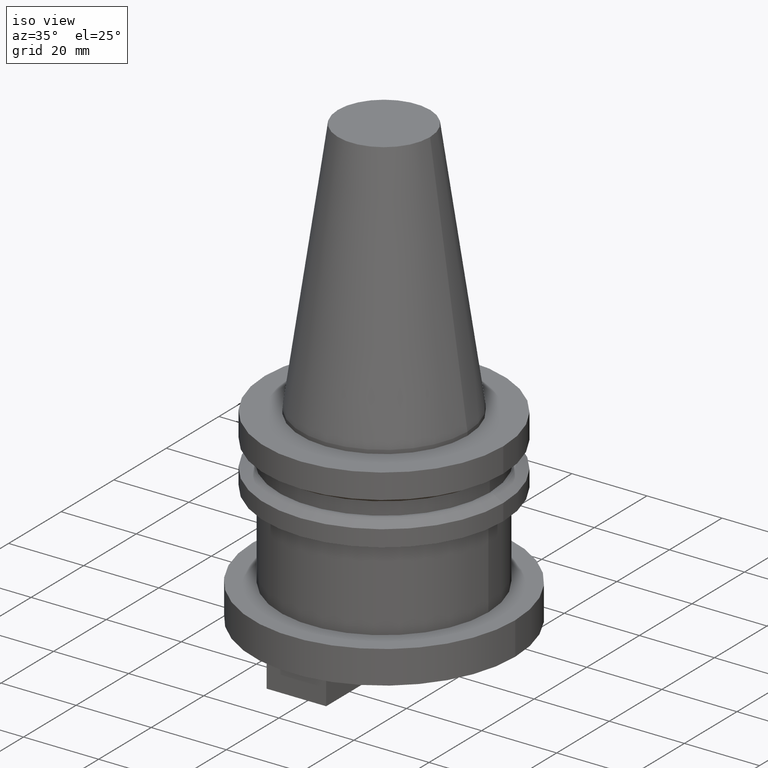
[diagram: clean part render]
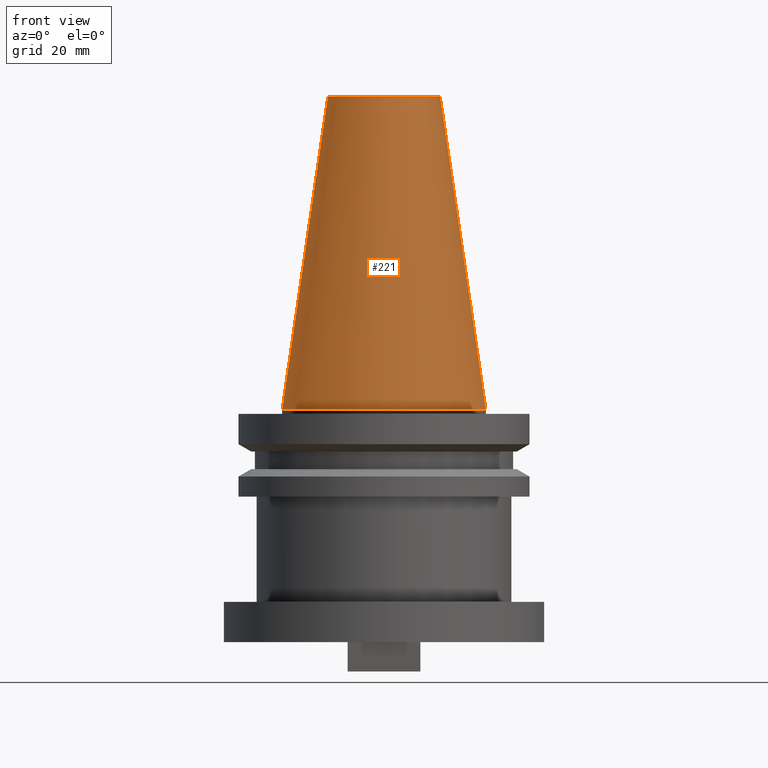
[diagram: tour spotlight — one face highlighted and labeled with its STEP entity id]
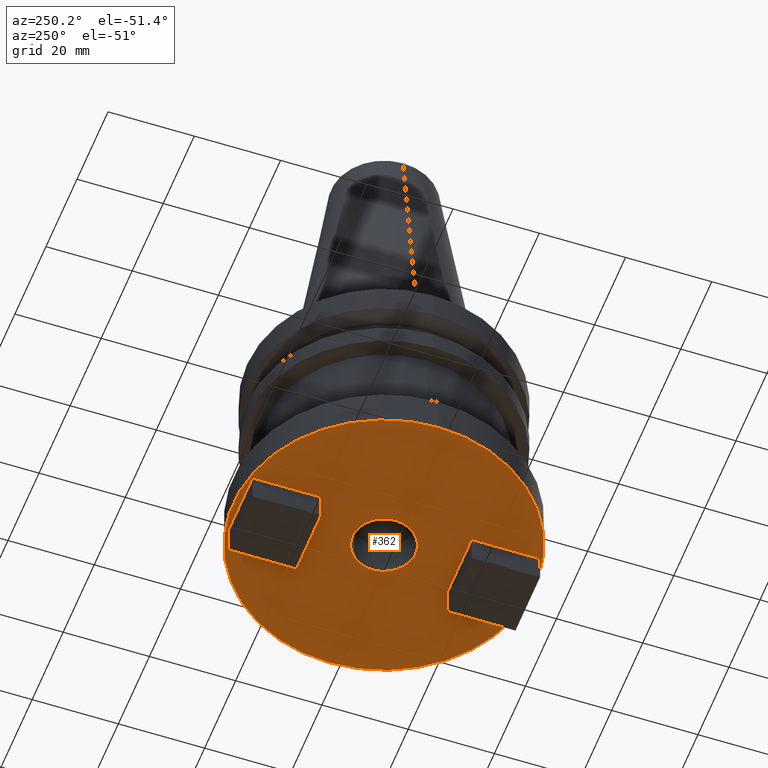
[diagram: tour spotlight — one face highlighted and labeled with its STEP entity id]
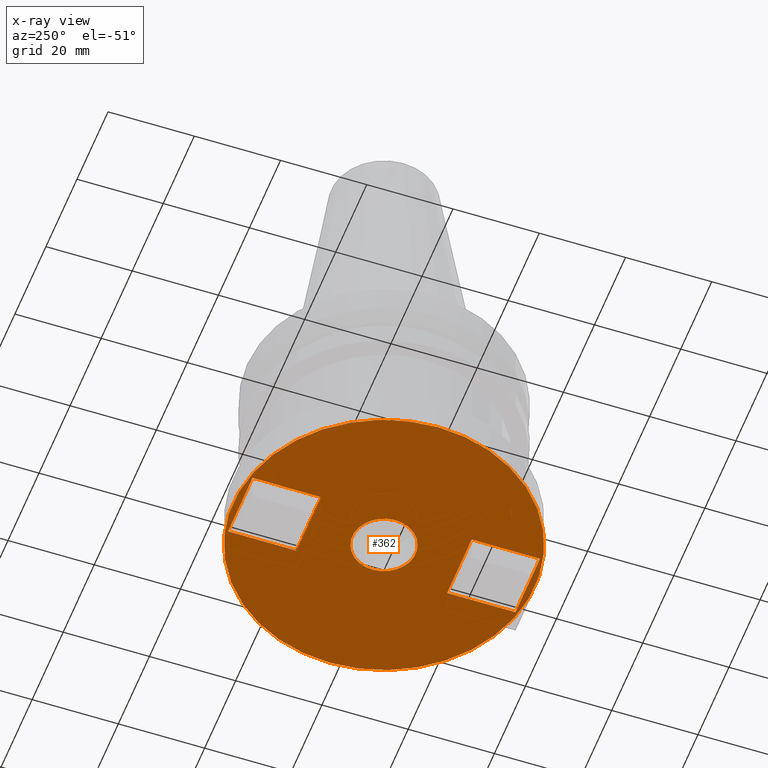
[diagram: x-ray of the same camera — body ghosted, this tour face saturated]
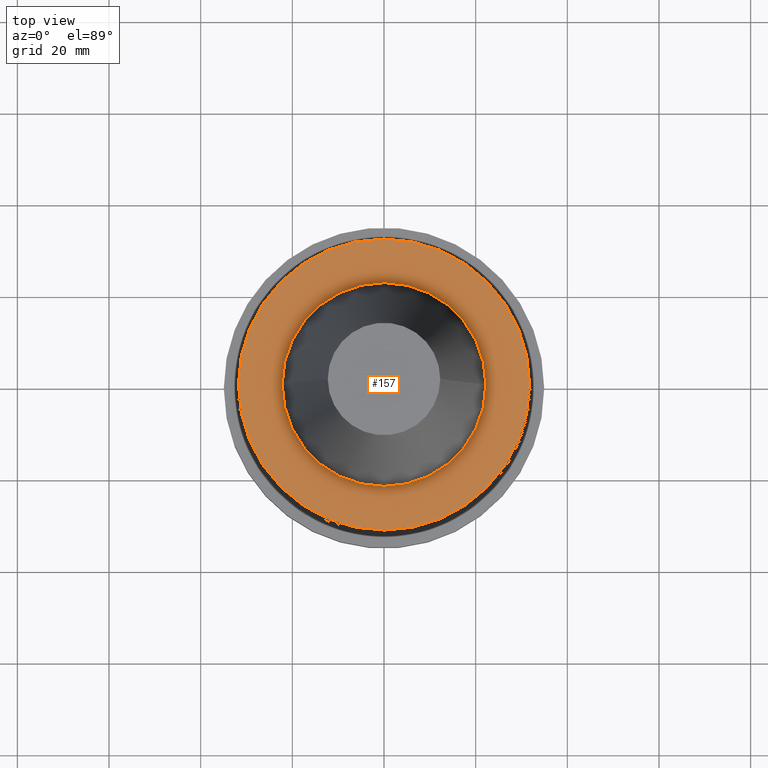
[diagram: tour spotlight — one face highlighted and labeled with its STEP entity id]
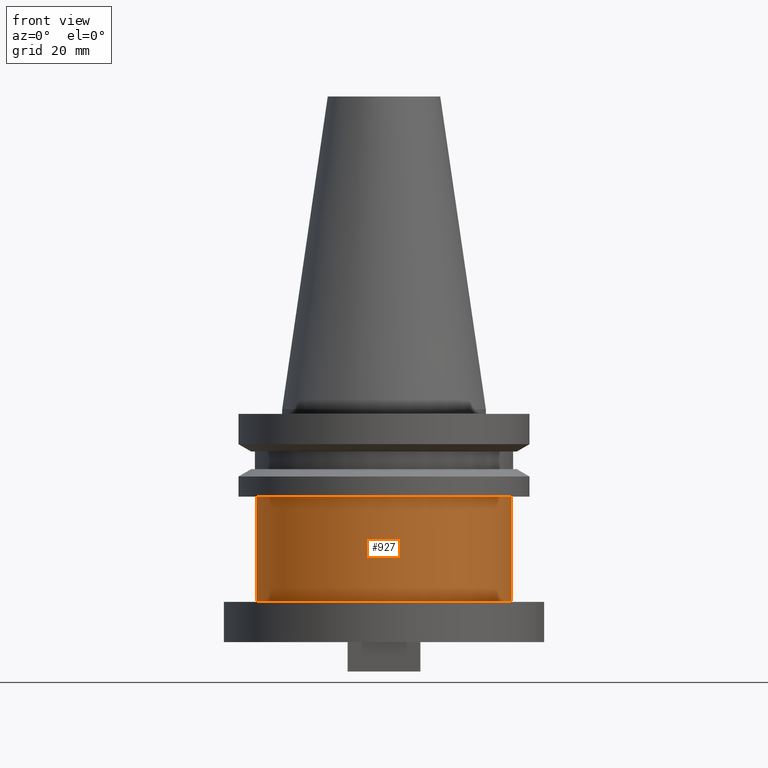
[diagram: tour spotlight — one face highlighted and labeled with its STEP entity id]
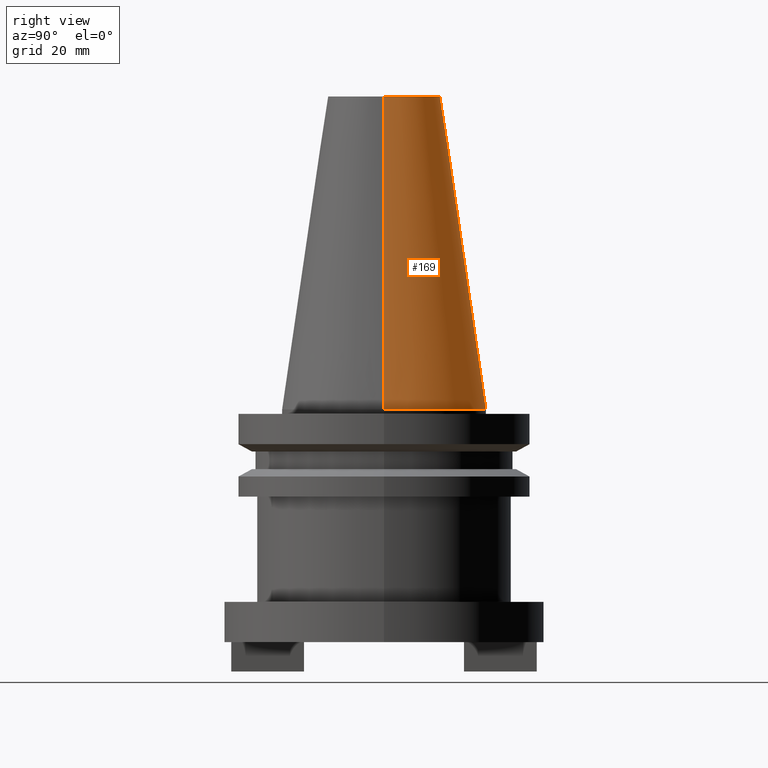
[diagram: tour spotlight — one face highlighted and labeled with its STEP entity id]
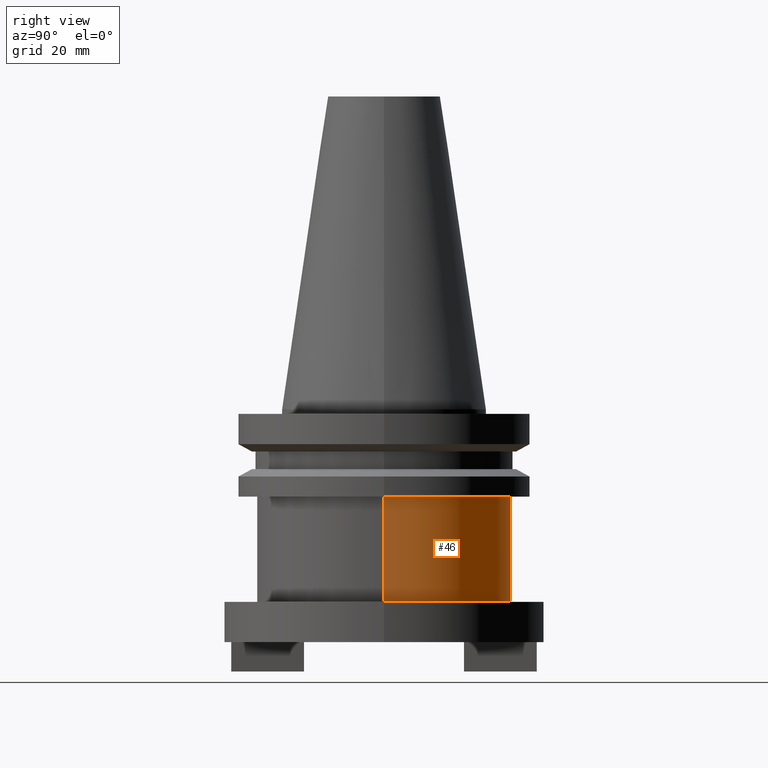
[diagram: tour spotlight — one face highlighted and labeled with its STEP entity id]
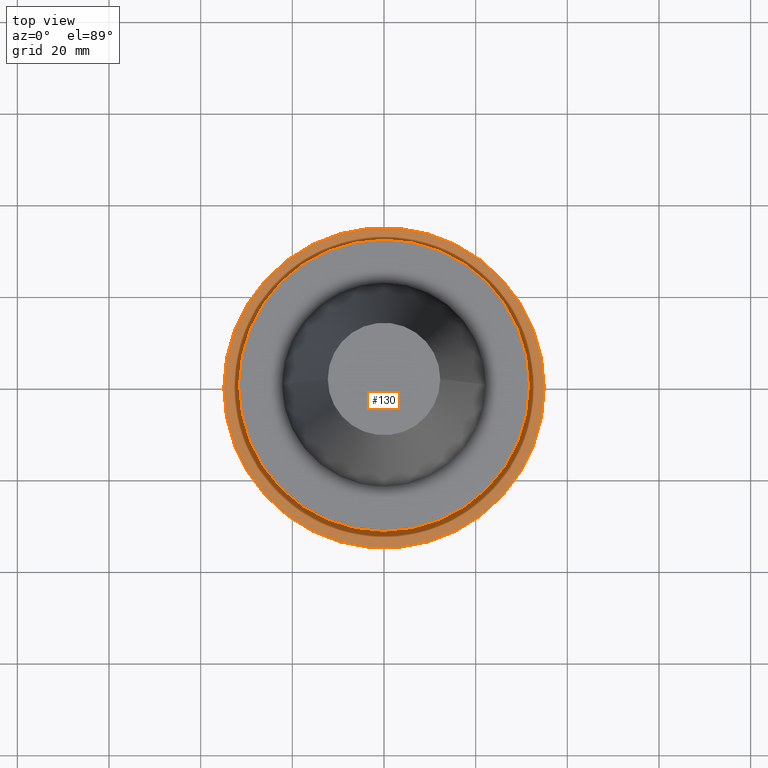
[diagram: tour spotlight — one face highlighted and labeled with its STEP entity id]
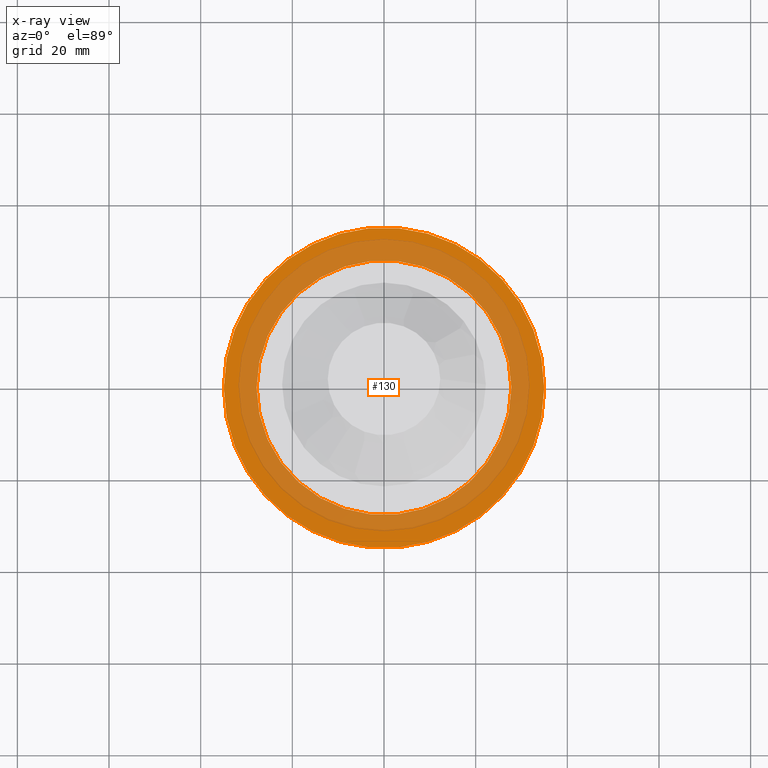
[diagram: x-ray of the same camera — body ghosted, this tour face saturated]
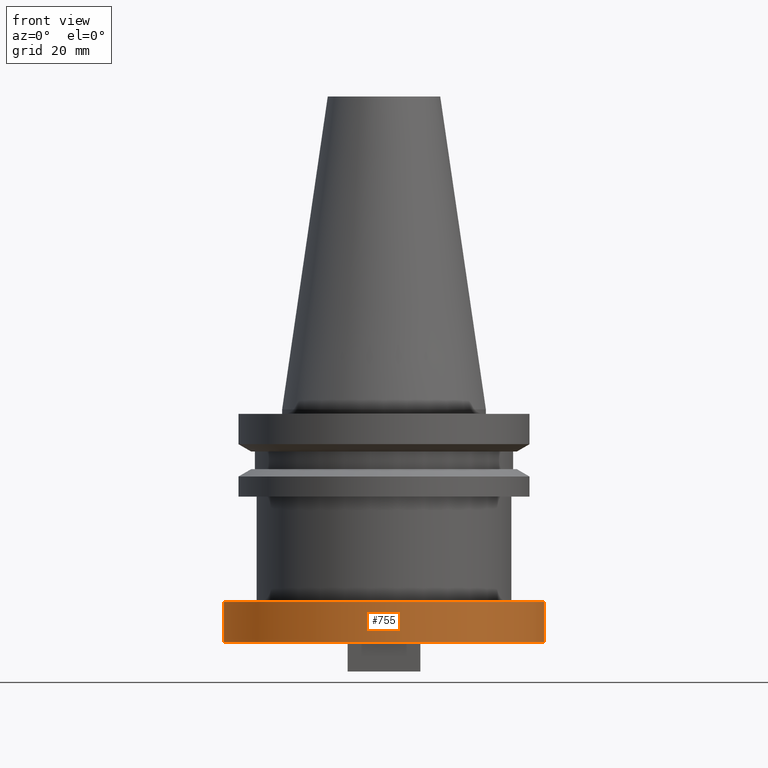
[diagram: tour spotlight — one face highlighted and labeled with its STEP entity id]
A machine part: a face-by-face anatomy tour. The part has 38 B-rep faces; the first image is the clean iso view, then the 8 largest visible faces are spotlighted one at a time (largest first), each with its STEP entity span.

Face 1 — front view, entity #221. In plain terms, the highlighted conical surface has half-angle 8.297 deg.
Definition (entity closure, byte-faithful):
#17 = CIRCLE ( 'NONE', #28, 12.27178102086201150 ) ;
#28 = AXIS2_PLACEMENT_3D ( 'NONE', #229, #79, #892 ) ;
#65 = CARTESIAN_POINT ( 'NONE',  ( 22.22500000000000142, 2.721777511104992849E-15, 0.000000000000000000 ) ) ;
#66 = DIRECTION ( 'NONE',  ( -0.000000000000000000, -0.000000000000000000, 1.000000000000000000 ) ) ;
#79 = DIRECTION ( 'NONE',  ( -0.000000000000000000, -0.000000000000000000, 1.000000000000000000 ) ) ;
#134 = EDGE_CURVE ( 'NONE', #162, #773, #932, .T. ) ;
#162 = VERTEX_POINT ( 'NONE', #613 ) ;
#172 = AXIS2_PLACEMENT_3D ( 'NONE', #564, #66, #975 ) ;
#183 = CARTESIAN_POINT ( 'NONE',  ( -22.22500000000000142, 0.000000000000000000, 0.000000000000000000 ) ) ;
#194 = CARTESIAN_POINT ( 'NONE',  ( 22.22500000000000142, 2.721777511104992849E-15, 0.000000000000000000 ) ) ;
#197 = CARTESIAN_POINT ( 'NONE',  ( 0.000000000000000000, 0.000000000000000000, 0.000000000000000000 ) ) ;
#221 = ADVANCED_FACE ( 'NONE', ( #371 ), #998, .T. ) ;
#229 = CARTESIAN_POINT ( 'NONE',  ( 0.000000000000000000, 0.000000000000000000, 68.25000000000000000 ) ) ;
#233 = ORIENTED_EDGE ( 'NONE', *, *, #408, .F. ) ;
#280 = EDGE_CURVE ( 'NONE', #773, #991, #631, .T. ) ;
#371 = FACE_OUTER_BOUND ( 'NONE', #962, .T. ) ;
#374 = AXIS2_PLACEMENT_3D ( 'NONE', #197, #938, #1048 ) ;
#395 = VECTOR ( 'NONE', #508, 999.9999999999998863 ) ;
#408 = EDGE_CURVE ( 'NONE', #162, #878, #17, .T. ) ;
#430 = VECTOR ( 'NONE', #1031, 999.9999999999998863 ) ;
#456 = LINE ( 'NONE', #194, #430 ) ;
#508 = DIRECTION ( 'NONE',  ( -0.1443082272672999711, 0.000000000000000000, -0.9895327864921755756 ) ) ;
#564 = CARTESIAN_POINT ( 'NONE',  ( 0.000000000000000000, 0.000000000000000000, 0.000000000000000000 ) ) ;
#580 = ORIENTED_EDGE ( 'NONE', *, *, #134, .T. ) ;
#604 = EDGE_CURVE ( 'NONE', #878, #991, #456, .T. ) ;
#613 = CARTESIAN_POINT ( 'NONE',  ( -12.27178102086201150, 0.000000000000000000, 68.25000000000000000 ) ) ;
#631 = CIRCLE ( 'NONE', #172, 22.22500000000000142 ) ;
#644 = CARTESIAN_POINT ( 'NONE',  ( -22.22500000000000142, 0.000000000000000000, 0.000000000000000000 ) ) ;
#645 = ORIENTED_EDGE ( 'NONE', *, *, #280, .T. ) ;
#695 = CARTESIAN_POINT ( 'NONE',  ( 12.27178102086201150, 2.112318622904291439E-15, 68.25000000000000000 ) ) ;
#773 = VERTEX_POINT ( 'NONE', #644 ) ;
#878 = VERTEX_POINT ( 'NONE', #695 ) ;
#892 = DIRECTION ( 'NONE',  ( 1.000000000000000000, 0.000000000000000000, 0.000000000000000000 ) ) ;
#932 = LINE ( 'NONE', #183, #395 ) ;
#938 = DIRECTION ( 'NONE',  ( 0.000000000000000000, 0.000000000000000000, -1.000000000000000000 ) ) ;
#958 = ORIENTED_EDGE ( 'NONE', *, *, #604, .F. ) ;
#962 = EDGE_LOOP ( 'NONE', ( #958, #233, #580, #645 ) ) ;
#975 = DIRECTION ( 'NONE',  ( 1.000000000000000000, 0.000000000000000000, 0.000000000000000000 ) ) ;
#991 = VERTEX_POINT ( 'NONE', #65 ) ;
#998 = CONICAL_SURFACE ( 'NONE', #374, 22.22500000000000142, 0.1448138465474119174 ) ;
#1031 = DIRECTION ( 'NONE',  ( 0.1443082272672999711, 1.767266086135276757E-17, -0.9895327864921755756 ) ) ;
#1048 = DIRECTION ( 'NONE',  ( -1.000000000000000000, 0.000000000000000000, 0.000000000000000000 ) ) ;

Face 2 — auxiliary view, entity #362. An x-ray twin of the same camera follows (body ghosted, this face saturated) — the face is partly hidden behind the body. In plain terms, the highlighted planar face has unit normal (0, -0, 1).
Definition (entity closure, byte-faithful):
#1 = VECTOR ( 'NONE', #109, 1000.000000000000000 ) ;
#3 = CARTESIAN_POINT ( 'NONE',  ( 7.934999999999999609, 17.46499999999999631, -50.79999999999999716 ) ) ;
#15 = EDGE_LOOP ( 'NONE', ( #367, #943, #657, #641 ) ) ;
#18 = AXIS2_PLACEMENT_3D ( 'NONE', #1008, #401, #726 ) ;
#23 = VERTEX_POINT ( 'NONE', #232 ) ;
#43 = CARTESIAN_POINT ( 'NONE',  ( -7.934999999999999609, -17.46499999999999986, -50.79999999999999716 ) ) ;
#47 = CARTESIAN_POINT ( 'NONE',  ( 34.95000000000000284, 0.000000000000000000, -50.79999999999999716 ) ) ;
#57 = EDGE_LOOP ( 'NONE', ( #373, #114 ) ) ;
#64 = ORIENTED_EDGE ( 'NONE', *, *, #492, .F. ) ;
#73 = DIRECTION ( 'NONE',  ( -1.000000000000000000, 0.000000000000000000, 0.000000000000000000 ) ) ;
#84 = DIRECTION ( 'NONE',  ( 1.000000000000000000, -0.000000000000000000, -0.000000000000000000 ) ) ;
#109 = DIRECTION ( 'NONE',  ( -1.000000000000000000, 0.000000000000000000, 0.000000000000000000 ) ) ;
#114 = ORIENTED_EDGE ( 'NONE', *, *, #596, .F. ) ;
#115 = VECTOR ( 'NONE', #859, 1000.000000000000000 ) ;
#125 = CARTESIAN_POINT ( 'NONE',  ( 7.935000000000001386, -17.46499999999999986, -50.79999999999999716 ) ) ;
#140 = CARTESIAN_POINT ( 'NONE',  ( -7.934999999999999609, 33.33499999999999375, -50.79999999999999716 ) ) ;
#144 = VERTEX_POINT ( 'NONE', #849 ) ;
#152 = CARTESIAN_POINT ( 'NONE',  ( 7.934999999999999609, 33.33499999999999375, -50.79999999999999716 ) ) ;
#159 = DIRECTION ( 'NONE',  ( 0.000000000000000000, -0.000000000000000000, 1.000000000000000000 ) ) ;
#161 = VERTEX_POINT ( 'NONE', #47 ) ;
#166 = EDGE_CURVE ( 'NONE', #552, #1067, #351, .T. ) ;
#168 = CARTESIAN_POINT ( 'NONE',  ( -7.934999999999999609, 33.33499999999999375, -50.79999999999999716 ) ) ;
#173 = CIRCLE ( 'NONE', #202, 34.95000000000000284 ) ;
#189 = CARTESIAN_POINT ( 'NONE',  ( 0.000000000000000000, 0.000000000000000000, -50.79999999999999716 ) ) ;
#202 = AXIS2_PLACEMENT_3D ( 'NONE', #189, #451, #283 ) ;
#207 = ORIENTED_EDGE ( 'NONE', *, *, #166, .F. ) ;
#213 = VERTEX_POINT ( 'NONE', #529 ) ;
#232 = CARTESIAN_POINT ( 'NONE',  ( -7.934999999999999609, -17.46499999999999986, -50.79999999999999716 ) ) ;
#234 = LINE ( 'NONE', #3, #961 ) ;
#235 = CARTESIAN_POINT ( 'NONE',  ( 0.000000000000000000, 34.95000000000000284, -50.79999999999999716 ) ) ;
#251 = EDGE_CURVE ( 'NONE', #1067, #482, #300, .T. ) ;
#257 = VECTOR ( 'NONE', #591, 1000.000000000000000 ) ;
#275 = LINE ( 'NONE', #43, #257 ) ;
#283 = DIRECTION ( 'NONE',  ( 1.000000000000000000, 0.000000000000000000, 0.000000000000000000 ) ) ;
#284 = ORIENTED_EDGE ( 'NONE', *, *, #1068, .F. ) ;
#288 = ORIENTED_EDGE ( 'NONE', *, *, #1059, .T. ) ;
#300 = LINE ( 'NONE', #514, #1 ) ;
#343 = VECTOR ( 'NONE', #84, 1000.000000000000000 ) ;
#348 = VERTEX_POINT ( 'NONE', #993 ) ;
#351 = LINE ( 'NONE', #378, #115 ) ;
#353 = VERTEX_POINT ( 'NONE', #1088 ) ;
#362 = ADVANCED_FACE ( 'NONE', ( #1078, #638, #634, #478 ), #910, .F. ) ;
#367 = ORIENTED_EDGE ( 'NONE', *, *, #960, .F. ) ;
#373 = ORIENTED_EDGE ( 'NONE', *, *, #1049, .F. ) ;
#378 = CARTESIAN_POINT ( 'NONE',  ( 7.935000000000001386, -17.46499999999999986, -50.79999999999999716 ) ) ;
#383 = DIRECTION ( 'NONE',  ( -0.000000000000000000, -0.000000000000000000, 1.000000000000000000 ) ) ;
#401 = DIRECTION ( 'NONE',  ( -0.000000000000000000, -0.000000000000000000, 1.000000000000000000 ) ) ;
#444 = AXIS2_PLACEMENT_3D ( 'NONE', #981, #383, #880 ) ;
#451 = DIRECTION ( 'NONE',  ( -0.000000000000000000, -0.000000000000000000, 1.000000000000000000 ) ) ;
#454 = CARTESIAN_POINT ( 'NONE',  ( 7.934999999999999609, 33.33499999999999375, -50.79999999999999716 ) ) ;
#473 = DIRECTION ( 'NONE',  ( -0.000000000000000000, 1.000000000000000000, -0.000000000000000000 ) ) ;
#478 = FACE_BOUND ( 'NONE', #967, .T. ) ;
#482 = VERTEX_POINT ( 'NONE', #915 ) ;
#483 = CIRCLE ( 'NONE', #18, 34.95000000000000284 ) ;
#492 = EDGE_CURVE ( 'NONE', #482, #23, #275, .T. ) ;
#514 = CARTESIAN_POINT ( 'NONE',  ( 7.935000000000001386, -33.33499999999999375, -50.79999999999999716 ) ) ;
#520 = EDGE_LOOP ( 'NONE', ( #894, #288 ) ) ;
#529 = CARTESIAN_POINT ( 'NONE',  ( 7.934999999999999609, 17.46499999999999631, -50.79999999999999716 ) ) ;
#552 = VERTEX_POINT ( 'NONE', #125 ) ;
#560 = DIRECTION ( 'NONE',  ( 1.000000000000000000, 0.000000000000000000, 0.000000000000000000 ) ) ;
#573 = DIRECTION ( 'NONE',  ( -0.000000000000000000, -0.000000000000000000, 1.000000000000000000 ) ) ;
#576 = CARTESIAN_POINT ( 'NONE',  ( 7.935000000000001386, -33.33499999999999375, -50.79999999999999716 ) ) ;
#591 = DIRECTION ( 'NONE',  ( -0.000000000000000000, 1.000000000000000000, -0.000000000000000000 ) ) ;
#596 = EDGE_CURVE ( 'NONE', #348, #161, #173, .T. ) ;
#612 = CIRCLE ( 'NONE', #633, 7.339999999999999858 ) ;
#632 = VECTOR ( 'NONE', #972, 1000.000000000000000 ) ;
#633 = AXIS2_PLACEMENT_3D ( 'NONE', #992, #573, #917 ) ;
#634 = FACE_BOUND ( 'NONE', #520, .T. ) ;
#637 = LINE ( 'NONE', #987, #343 ) ;
#638 = FACE_OUTER_BOUND ( 'NONE', #57, .T. ) ;
#641 = ORIENTED_EDGE ( 'NONE', *, *, #1020, .F. ) ;
#657 = ORIENTED_EDGE ( 'NONE', *, *, #765, .F. ) ;
#677 = CARTESIAN_POINT ( 'NONE',  ( 7.935000000000001386, -17.46499999999999986, -50.79999999999999716 ) ) ;
#721 = VECTOR ( 'NONE', #473, 1000.000000000000000 ) ;
#726 = DIRECTION ( 'NONE',  ( 1.000000000000000000, 0.000000000000000000, 0.000000000000000000 ) ) ;
#756 = AXIS2_PLACEMENT_3D ( 'NONE', #235, #159, #560 ) ;
#765 = EDGE_CURVE ( 'NONE', #867, #213, #904, .T. ) ;
#789 = CARTESIAN_POINT ( 'NONE',  ( -7.934999999999999609, 17.46499999999999631, -50.79999999999999716 ) ) ;
#824 = EDGE_CURVE ( 'NONE', #353, #144, #869, .T. ) ;
#846 = ORIENTED_EDGE ( 'NONE', *, *, #251, .F. ) ;
#849 = CARTESIAN_POINT ( 'NONE',  ( -7.339999999999999858, 8.988907505741571865E-16, -50.79999999999999716 ) ) ;
#851 = VECTOR ( 'NONE', #922, 1000.000000000000000 ) ;
#859 = DIRECTION ( 'NONE',  ( 0.000000000000000000, -1.000000000000000000, 0.000000000000000000 ) ) ;
#861 = VERTEX_POINT ( 'NONE', #140 ) ;
#867 = VERTEX_POINT ( 'NONE', #454 ) ;
#869 = CIRCLE ( 'NONE', #444, 7.339999999999999858 ) ;
#880 = DIRECTION ( 'NONE',  ( 1.000000000000000000, 0.000000000000000000, 0.000000000000000000 ) ) ;
#894 = ORIENTED_EDGE ( 'NONE', *, *, #824, .T. ) ;
#902 = LINE ( 'NONE', #168, #721 ) ;
#904 = LINE ( 'NONE', #152, #632 ) ;
#910 = PLANE ( 'NONE',  #756 ) ;
#915 = CARTESIAN_POINT ( 'NONE',  ( -7.934999999999999609, -33.33499999999999375, -50.79999999999999716 ) ) ;
#917 = DIRECTION ( 'NONE',  ( 1.000000000000000000, 0.000000000000000000, 0.000000000000000000 ) ) ;
#922 = DIRECTION ( 'NONE',  ( 1.000000000000000000, -0.000000000000000000, -0.000000000000000000 ) ) ;
#929 = LINE ( 'NONE', #677, #851 ) ;
#933 = VERTEX_POINT ( 'NONE', #789 ) ;
#943 = ORIENTED_EDGE ( 'NONE', *, *, #1036, .F. ) ;
#960 = EDGE_CURVE ( 'NONE', #933, #861, #902, .T. ) ;
#961 = VECTOR ( 'NONE', #73, 1000.000000000000000 ) ;
#967 = EDGE_LOOP ( 'NONE', ( #64, #846, #207, #284 ) ) ;
#972 = DIRECTION ( 'NONE',  ( 0.000000000000000000, -1.000000000000000000, 0.000000000000000000 ) ) ;
#981 = CARTESIAN_POINT ( 'NONE',  ( 0.000000000000000000, 0.000000000000000000, -50.79999999999999716 ) ) ;
#987 = CARTESIAN_POINT ( 'NONE',  ( 7.934999999999999609, 33.33499999999999375, -50.79999999999999716 ) ) ;
#992 = CARTESIAN_POINT ( 'NONE',  ( 0.000000000000000000, 0.000000000000000000, -50.79999999999999716 ) ) ;
#993 = CARTESIAN_POINT ( 'NONE',  ( -34.95000000000000284, 4.280140563019999423E-15, -50.79999999999999716 ) ) ;
#1008 = CARTESIAN_POINT ( 'NONE',  ( 0.000000000000000000, 0.000000000000000000, -50.79999999999999716 ) ) ;
#1020 = EDGE_CURVE ( 'NONE', #861, #867, #637, .T. ) ;
#1036 = EDGE_CURVE ( 'NONE', #213, #933, #234, .T. ) ;
#1049 = EDGE_CURVE ( 'NONE', #161, #348, #483, .T. ) ;
#1059 = EDGE_CURVE ( 'NONE', #144, #353, #612, .T. ) ;
#1067 = VERTEX_POINT ( 'NONE', #576 ) ;
#1068 = EDGE_CURVE ( 'NONE', #23, #552, #929, .T. ) ;
#1078 = FACE_BOUND ( 'NONE', #15, .T. ) ;
#1088 = CARTESIAN_POINT ( 'NONE',  ( 7.339999999999999858, 0.000000000000000000, -50.79999999999999716 ) ) ;

Face 3 — top view, entity #157. In plain terms, the highlighted planar face has unit normal (0, 0, -1).
Definition (entity closure, byte-faithful):
#10 = DIRECTION ( 'NONE',  ( -0.000000000000000000, -0.000000000000000000, 1.000000000000000000 ) ) ;
#37 = CARTESIAN_POINT ( 'NONE',  ( 0.000000000000000000, 0.000000000000000000, -1.000000000000000888 ) ) ;
#48 = AXIS2_PLACEMENT_3D ( 'NONE', #124, #686, #210 ) ;
#87 = CIRCLE ( 'NONE', #443, 22.22500000000000142 ) ;
#112 = FACE_BOUND ( 'NONE', #303, .T. ) ;
#124 = CARTESIAN_POINT ( 'NONE',  ( 0.000000000000000000, 31.75000000000000000, -0.9999999999999943379 ) ) ;
#157 = ADVANCED_FACE ( 'NONE', ( #112, #690 ), #876, .F. ) ;
#165 = CARTESIAN_POINT ( 'NONE',  ( 0.000000000000000000, 0.000000000000000000, -1.000000000000000888 ) ) ;
#208 = EDGE_CURVE ( 'NONE', #806, #953, #680, .T. ) ;
#210 = DIRECTION ( 'NONE',  ( -1.000000000000000000, 0.000000000000000000, -0.000000000000000000 ) ) ;
#261 = EDGE_CURVE ( 'NONE', #694, #442, #271, .T. ) ;
#271 = CIRCLE ( 'NONE', #885, 22.22500000000000142 ) ;
#274 = DIRECTION ( 'NONE',  ( -0.000000000000000000, -0.000000000000000000, 1.000000000000000000 ) ) ;
#303 = EDGE_LOOP ( 'NONE', ( #391, #471 ) ) ;
#391 = ORIENTED_EDGE ( 'NONE', *, *, #261, .F. ) ;
#442 = VERTEX_POINT ( 'NONE', #467 ) ;
#443 = AXIS2_PLACEMENT_3D ( 'NONE', #165, #493, #829 ) ;
#462 = EDGE_CURVE ( 'NONE', #442, #694, #87, .T. ) ;
#467 = CARTESIAN_POINT ( 'NONE',  ( -22.22500000000000142, 2.721777511104992849E-15, -1.000000000000000888 ) ) ;
#471 = ORIENTED_EDGE ( 'NONE', *, *, #462, .F. ) ;
#493 = DIRECTION ( 'NONE',  ( -0.000000000000000000, -0.000000000000000000, 1.000000000000000000 ) ) ;
#680 = CIRCLE ( 'NONE', #848, 31.75000000000000000 ) ;
#686 = DIRECTION ( 'NONE',  ( 0.000000000000000000, 0.000000000000000000, -1.000000000000000000 ) ) ;
#690 = FACE_OUTER_BOUND ( 'NONE', #995, .T. ) ;
#694 = VERTEX_POINT ( 'NONE', #715 ) ;
#715 = CARTESIAN_POINT ( 'NONE',  ( 22.22500000000000142, 0.000000000000000000, -1.000000000000000888 ) ) ;
#733 = CARTESIAN_POINT ( 'NONE',  ( 31.75000000000000000, 0.000000000000000000, -1.000000000000000888 ) ) ;
#740 = CIRCLE ( 'NONE', #890, 31.75000000000000000 ) ;
#766 = CARTESIAN_POINT ( 'NONE',  ( 0.000000000000000000, 0.000000000000000000, -1.000000000000000888 ) ) ;
#800 = EDGE_CURVE ( 'NONE', #953, #806, #740, .T. ) ;
#806 = VERTEX_POINT ( 'NONE', #733 ) ;
#829 = DIRECTION ( 'NONE',  ( 1.000000000000000000, 0.000000000000000000, 0.000000000000000000 ) ) ;
#848 = AXIS2_PLACEMENT_3D ( 'NONE', #37, #944, #1029 ) ;
#863 = CARTESIAN_POINT ( 'NONE',  ( 0.000000000000000000, 0.000000000000000000, -1.000000000000000888 ) ) ;
#864 = DIRECTION ( 'NONE',  ( 1.000000000000000000, 0.000000000000000000, 0.000000000000000000 ) ) ;
#873 = ORIENTED_EDGE ( 'NONE', *, *, #208, .T. ) ;
#876 = PLANE ( 'NONE',  #48 ) ;
#885 = AXIS2_PLACEMENT_3D ( 'NONE', #766, #274, #864 ) ;
#890 = AXIS2_PLACEMENT_3D ( 'NONE', #863, #10, #1009 ) ;
#944 = DIRECTION ( 'NONE',  ( -0.000000000000000000, -0.000000000000000000, 1.000000000000000000 ) ) ;
#953 = VERTEX_POINT ( 'NONE', #1081 ) ;
#995 = EDGE_LOOP ( 'NONE', ( #873, #1035 ) ) ;
#1009 = DIRECTION ( 'NONE',  ( 1.000000000000000000, 0.000000000000000000, 0.000000000000000000 ) ) ;
#1029 = DIRECTION ( 'NONE',  ( 1.000000000000000000, 0.000000000000000000, 0.000000000000000000 ) ) ;
#1035 = ORIENTED_EDGE ( 'NONE', *, *, #800, .T. ) ;
#1081 = CARTESIAN_POINT ( 'NONE',  ( -31.75000000000000000, 3.888253587292846476E-15, -1.000000000000000888 ) ) ;

Face 4 — front view, entity #927. In plain terms, the highlighted cylindrical surface (partial cylindrical patch) has radius 27.8 mm, axis along (-0, -0, 1).
Definition (entity closure, byte-faithful):
#21 = DIRECTION ( 'NONE',  ( -0.000000000000000000, -0.000000000000000000, 1.000000000000000000 ) ) ;
#24 = DIRECTION ( 'NONE',  ( 0.000000000000000000, 0.000000000000000000, -1.000000000000000000 ) ) ;
#27 = AXIS2_PLACEMENT_3D ( 'NONE', #665, #21, #86 ) ;
#53 = EDGE_CURVE ( 'NONE', #535, #819, #479, .T. ) ;
#55 = CARTESIAN_POINT ( 'NONE',  ( -27.80000000000000071, 3.404518101629642167E-15, -42.00000000000000711 ) ) ;
#86 = DIRECTION ( 'NONE',  ( 1.000000000000000000, 0.000000000000000000, 0.000000000000000000 ) ) ;
#101 = EDGE_CURVE ( 'NONE', #526, #819, #256, .T. ) ;
#179 = CARTESIAN_POINT ( 'NONE',  ( 27.80000000000000071, 0.000000000000000000, -19.04999999999999716 ) ) ;
#230 = EDGE_CURVE ( 'NONE', #333, #535, #292, .T. ) ;
#255 = EDGE_CURVE ( 'NONE', #526, #333, #497, .T. ) ;
#256 = LINE ( 'NONE', #656, #865 ) ;
#273 = AXIS2_PLACEMENT_3D ( 'NONE', #896, #606, #285 ) ;
#285 = DIRECTION ( 'NONE',  ( 1.000000000000000000, 0.000000000000000000, 0.000000000000000000 ) ) ;
#292 = LINE ( 'NONE', #1055, #458 ) ;
#333 = VERTEX_POINT ( 'NONE', #55 ) ;
#346 = ORIENTED_EDGE ( 'NONE', *, *, #230, .F. ) ;
#424 = ORIENTED_EDGE ( 'NONE', *, *, #53, .F. ) ;
#434 = DIRECTION ( 'NONE',  ( -1.000000000000000000, 0.000000000000000000, 0.000000000000000000 ) ) ;
#458 = VECTOR ( 'NONE', #696, 1000.000000000000000 ) ;
#466 = CYLINDRICAL_SURFACE ( 'NONE', #273, 27.80000000000000071 ) ;
#479 = CIRCLE ( 'NONE', #27, 27.80000000000000071 ) ;
#497 = CIRCLE ( 'NONE', #590, 27.80000000000000071 ) ;
#522 = CARTESIAN_POINT ( 'NONE',  ( 0.000000000000000000, 0.000000000000000000, -42.00000000000000711 ) ) ;
#526 = VERTEX_POINT ( 'NONE', #786 ) ;
#534 = CARTESIAN_POINT ( 'NONE',  ( -27.80000000000000071, 3.404518101629642167E-15, -19.04999999999999716 ) ) ;
#535 = VERTEX_POINT ( 'NONE', #534 ) ;
#590 = AXIS2_PLACEMENT_3D ( 'NONE', #522, #24, #434 ) ;
#606 = DIRECTION ( 'NONE',  ( -0.000000000000000000, -0.000000000000000000, 1.000000000000000000 ) ) ;
#618 = EDGE_LOOP ( 'NONE', ( #346, #787, #698, #424 ) ) ;
#656 = CARTESIAN_POINT ( 'NONE',  ( 27.80000000000000071, 0.000000000000000000, 68.25000000000000000 ) ) ;
#665 = CARTESIAN_POINT ( 'NONE',  ( 0.000000000000000000, 0.000000000000000000, -19.04999999999999716 ) ) ;
#674 = DIRECTION ( 'NONE',  ( -0.000000000000000000, -0.000000000000000000, 1.000000000000000000 ) ) ;
#696 = DIRECTION ( 'NONE',  ( -0.000000000000000000, -0.000000000000000000, 1.000000000000000000 ) ) ;
#698 = ORIENTED_EDGE ( 'NONE', *, *, #101, .T. ) ;
#786 = CARTESIAN_POINT ( 'NONE',  ( 27.80000000000000071, 0.000000000000000000, -42.00000000000000711 ) ) ;
#787 = ORIENTED_EDGE ( 'NONE', *, *, #255, .F. ) ;
#819 = VERTEX_POINT ( 'NONE', #179 ) ;
#865 = VECTOR ( 'NONE', #674, 1000.000000000000000 ) ;
#891 = FACE_OUTER_BOUND ( 'NONE', #618, .T. ) ;
#896 = CARTESIAN_POINT ( 'NONE',  ( 0.000000000000000000, 0.000000000000000000, 68.25000000000000000 ) ) ;
#927 = ADVANCED_FACE ( 'NONE', ( #891 ), #466, .T. ) ;
#1055 = CARTESIAN_POINT ( 'NONE',  ( -27.80000000000000071, 3.404518101629642167E-15, 68.25000000000000000 ) ) ;

Face 5 — right view, entity #169. In plain terms, the highlighted conical surface has half-angle 8.297 deg.
Definition (entity closure, byte-faithful):
#52 = AXIS2_PLACEMENT_3D ( 'NONE', #883, #56, #635 ) ;
#56 = DIRECTION ( 'NONE',  ( -0.000000000000000000, -0.000000000000000000, 1.000000000000000000 ) ) ;
#65 = CARTESIAN_POINT ( 'NONE',  ( 22.22500000000000142, 2.721777511104992849E-15, 0.000000000000000000 ) ) ;
#134 = EDGE_CURVE ( 'NONE', #162, #773, #932, .T. ) ;
#137 = CIRCLE ( 'NONE', #52, 22.22500000000000142 ) ;
#162 = VERTEX_POINT ( 'NONE', #613 ) ;
#169 = ADVANCED_FACE ( 'NONE', ( #790 ), #1014, .T. ) ;
#183 = CARTESIAN_POINT ( 'NONE',  ( -22.22500000000000142, 0.000000000000000000, 0.000000000000000000 ) ) ;
#187 = CIRCLE ( 'NONE', #1076, 12.27178102086201150 ) ;
#194 = CARTESIAN_POINT ( 'NONE',  ( 22.22500000000000142, 2.721777511104992849E-15, 0.000000000000000000 ) ) ;
#299 = CARTESIAN_POINT ( 'NONE',  ( 0.000000000000000000, 0.000000000000000000, 68.25000000000000000 ) ) ;
#359 = CARTESIAN_POINT ( 'NONE',  ( 0.000000000000000000, 0.000000000000000000, 0.000000000000000000 ) ) ;
#363 = DIRECTION ( 'NONE',  ( -0.000000000000000000, -0.000000000000000000, 1.000000000000000000 ) ) ;
#368 = ORIENTED_EDGE ( 'NONE', *, *, #134, .F. ) ;
#395 = VECTOR ( 'NONE', #508, 999.9999999999998863 ) ;
#404 = ORIENTED_EDGE ( 'NONE', *, *, #918, .F. ) ;
#430 = VECTOR ( 'NONE', #1031, 999.9999999999998863 ) ;
#440 = ORIENTED_EDGE ( 'NONE', *, *, #752, .T. ) ;
#456 = LINE ( 'NONE', #194, #430 ) ;
#508 = DIRECTION ( 'NONE',  ( -0.1443082272672999711, 0.000000000000000000, -0.9895327864921755756 ) ) ;
#509 = AXIS2_PLACEMENT_3D ( 'NONE', #359, #871, #1043 ) ;
#604 = EDGE_CURVE ( 'NONE', #878, #991, #456, .T. ) ;
#613 = CARTESIAN_POINT ( 'NONE',  ( -12.27178102086201150, 0.000000000000000000, 68.25000000000000000 ) ) ;
#635 = DIRECTION ( 'NONE',  ( 1.000000000000000000, 0.000000000000000000, 0.000000000000000000 ) ) ;
#644 = CARTESIAN_POINT ( 'NONE',  ( -22.22500000000000142, 0.000000000000000000, 0.000000000000000000 ) ) ;
#695 = CARTESIAN_POINT ( 'NONE',  ( 12.27178102086201150, 2.112318622904291439E-15, 68.25000000000000000 ) ) ;
#752 = EDGE_CURVE ( 'NONE', #991, #773, #137, .T. ) ;
#773 = VERTEX_POINT ( 'NONE', #644 ) ;
#777 = DIRECTION ( 'NONE',  ( 1.000000000000000000, 0.000000000000000000, 0.000000000000000000 ) ) ;
#790 = FACE_OUTER_BOUND ( 'NONE', #843, .T. ) ;
#820 = ORIENTED_EDGE ( 'NONE', *, *, #604, .T. ) ;
#843 = EDGE_LOOP ( 'NONE', ( #404, #820, #440, #368 ) ) ;
#871 = DIRECTION ( 'NONE',  ( 0.000000000000000000, 0.000000000000000000, -1.000000000000000000 ) ) ;
#878 = VERTEX_POINT ( 'NONE', #695 ) ;
#883 = CARTESIAN_POINT ( 'NONE',  ( 0.000000000000000000, 0.000000000000000000, 0.000000000000000000 ) ) ;
#918 = EDGE_CURVE ( 'NONE', #878, #162, #187, .T. ) ;
#932 = LINE ( 'NONE', #183, #395 ) ;
#991 = VERTEX_POINT ( 'NONE', #65 ) ;
#1014 = CONICAL_SURFACE ( 'NONE', #509, 22.22500000000000142, 0.1448138465474119174 ) ;
#1031 = DIRECTION ( 'NONE',  ( 0.1443082272672999711, 1.767266086135276757E-17, -0.9895327864921755756 ) ) ;
#1043 = DIRECTION ( 'NONE',  ( -1.000000000000000000, 0.000000000000000000, 0.000000000000000000 ) ) ;
#1076 = AXIS2_PLACEMENT_3D ( 'NONE', #299, #363, #777 ) ;

Face 6 — right view, entity #46. In plain terms, the highlighted cylindrical surface (partial cylindrical patch) has radius 27.8 mm, axis along (-0, -0, 1).
Definition (entity closure, byte-faithful):
#46 = ADVANCED_FACE ( 'NONE', ( #578 ), #842, .T. ) ;
#55 = CARTESIAN_POINT ( 'NONE',  ( -27.80000000000000071, 3.404518101629642167E-15, -42.00000000000000711 ) ) ;
#71 = ORIENTED_EDGE ( 'NONE', *, *, #1063, .F. ) ;
#89 = AXIS2_PLACEMENT_3D ( 'NONE', #325, #418, #254 ) ;
#101 = EDGE_CURVE ( 'NONE', #526, #819, #256, .T. ) ;
#110 = EDGE_CURVE ( 'NONE', #333, #526, #1073, .T. ) ;
#179 = CARTESIAN_POINT ( 'NONE',  ( 27.80000000000000071, 0.000000000000000000, -19.04999999999999716 ) ) ;
#199 = ORIENTED_EDGE ( 'NONE', *, *, #101, .F. ) ;
#230 = EDGE_CURVE ( 'NONE', #333, #535, #292, .T. ) ;
#246 = CIRCLE ( 'NONE', #89, 27.80000000000000071 ) ;
#252 = DIRECTION ( 'NONE',  ( 1.000000000000000000, 0.000000000000000000, 0.000000000000000000 ) ) ;
#254 = DIRECTION ( 'NONE',  ( 1.000000000000000000, 0.000000000000000000, 0.000000000000000000 ) ) ;
#256 = LINE ( 'NONE', #656, #865 ) ;
#292 = LINE ( 'NONE', #1055, #458 ) ;
#325 = CARTESIAN_POINT ( 'NONE',  ( 0.000000000000000000, 0.000000000000000000, -19.04999999999999716 ) ) ;
#332 = CARTESIAN_POINT ( 'NONE',  ( 0.000000000000000000, 0.000000000000000000, -42.00000000000000711 ) ) ;
#333 = VERTEX_POINT ( 'NONE', #55 ) ;
#386 = EDGE_LOOP ( 'NONE', ( #874, #1058, #71, #199 ) ) ;
#418 = DIRECTION ( 'NONE',  ( -0.000000000000000000, -0.000000000000000000, 1.000000000000000000 ) ) ;
#458 = VECTOR ( 'NONE', #696, 1000.000000000000000 ) ;
#494 = CARTESIAN_POINT ( 'NONE',  ( 0.000000000000000000, 0.000000000000000000, 68.25000000000000000 ) ) ;
#498 = DIRECTION ( 'NONE',  ( -1.000000000000000000, 0.000000000000000000, 0.000000000000000000 ) ) ;
#526 = VERTEX_POINT ( 'NONE', #786 ) ;
#534 = CARTESIAN_POINT ( 'NONE',  ( -27.80000000000000071, 3.404518101629642167E-15, -19.04999999999999716 ) ) ;
#535 = VERTEX_POINT ( 'NONE', #534 ) ;
#578 = FACE_OUTER_BOUND ( 'NONE', #386, .T. ) ;
#584 = DIRECTION ( 'NONE',  ( -0.000000000000000000, -0.000000000000000000, 1.000000000000000000 ) ) ;
#656 = CARTESIAN_POINT ( 'NONE',  ( 27.80000000000000071, 0.000000000000000000, 68.25000000000000000 ) ) ;
#674 = DIRECTION ( 'NONE',  ( -0.000000000000000000, -0.000000000000000000, 1.000000000000000000 ) ) ;
#696 = DIRECTION ( 'NONE',  ( -0.000000000000000000, -0.000000000000000000, 1.000000000000000000 ) ) ;
#737 = AXIS2_PLACEMENT_3D ( 'NONE', #332, #750, #498 ) ;
#750 = DIRECTION ( 'NONE',  ( 0.000000000000000000, 0.000000000000000000, -1.000000000000000000 ) ) ;
#771 = AXIS2_PLACEMENT_3D ( 'NONE', #494, #584, #252 ) ;
#786 = CARTESIAN_POINT ( 'NONE',  ( 27.80000000000000071, 0.000000000000000000, -42.00000000000000711 ) ) ;
#819 = VERTEX_POINT ( 'NONE', #179 ) ;
#842 = CYLINDRICAL_SURFACE ( 'NONE', #771, 27.80000000000000071 ) ;
#865 = VECTOR ( 'NONE', #674, 1000.000000000000000 ) ;
#874 = ORIENTED_EDGE ( 'NONE', *, *, #110, .F. ) ;
#1055 = CARTESIAN_POINT ( 'NONE',  ( -27.80000000000000071, 3.404518101629642167E-15, 68.25000000000000000 ) ) ;
#1058 = ORIENTED_EDGE ( 'NONE', *, *, #230, .T. ) ;
#1063 = EDGE_CURVE ( 'NONE', #819, #535, #246, .T. ) ;
#1073 = CIRCLE ( 'NONE', #737, 27.80000000000000071 ) ;

Face 7 — top view, entity #130. An x-ray twin of the same camera follows (body ghosted, this face saturated) — the face is partly hidden behind the body. In plain terms, the highlighted planar face has unit normal (0, 0, -1).
Definition (entity closure, byte-faithful):
#19 = FACE_BOUND ( 'NONE', #77, .T. ) ;
#24 = DIRECTION ( 'NONE',  ( 0.000000000000000000, 0.000000000000000000, -1.000000000000000000 ) ) ;
#29 = CARTESIAN_POINT ( 'NONE',  ( -34.95000000000000284, 4.280140563019999423E-15, -42.00000000000000711 ) ) ;
#30 = AXIS2_PLACEMENT_3D ( 'NONE', #558, #743, #654 ) ;
#32 = ORIENTED_EDGE ( 'NONE', *, *, #653, .T. ) ;
#55 = CARTESIAN_POINT ( 'NONE',  ( -27.80000000000000071, 3.404518101629642167E-15, -42.00000000000000711 ) ) ;
#61 = CARTESIAN_POINT ( 'NONE',  ( 0.000000000000000000, 0.000000000000000000, -42.00000000000000711 ) ) ;
#77 = EDGE_LOOP ( 'NONE', ( #1046, #592 ) ) ;
#110 = EDGE_CURVE ( 'NONE', #333, #526, #1073, .T. ) ;
#130 = ADVANCED_FACE ( 'NONE', ( #19, #1010 ), #345, .F. ) ;
#143 = ORIENTED_EDGE ( 'NONE', *, *, #952, .T. ) ;
#218 = VERTEX_POINT ( 'NONE', #532 ) ;
#245 = VERTEX_POINT ( 'NONE', #29 ) ;
#255 = EDGE_CURVE ( 'NONE', #526, #333, #497, .T. ) ;
#332 = CARTESIAN_POINT ( 'NONE',  ( 0.000000000000000000, 0.000000000000000000, -42.00000000000000711 ) ) ;
#333 = VERTEX_POINT ( 'NONE', #55 ) ;
#345 = PLANE ( 'NONE',  #565 ) ;
#409 = DIRECTION ( 'NONE',  ( -0.000000000000000000, -0.000000000000000000, 1.000000000000000000 ) ) ;
#434 = DIRECTION ( 'NONE',  ( -1.000000000000000000, 0.000000000000000000, 0.000000000000000000 ) ) ;
#497 = CIRCLE ( 'NONE', #590, 27.80000000000000071 ) ;
#498 = DIRECTION ( 'NONE',  ( -1.000000000000000000, 0.000000000000000000, 0.000000000000000000 ) ) ;
#522 = CARTESIAN_POINT ( 'NONE',  ( 0.000000000000000000, 0.000000000000000000, -42.00000000000000711 ) ) ;
#526 = VERTEX_POINT ( 'NONE', #786 ) ;
#532 = CARTESIAN_POINT ( 'NONE',  ( 34.95000000000000284, 0.000000000000000000, -42.00000000000000711 ) ) ;
#558 = CARTESIAN_POINT ( 'NONE',  ( 0.000000000000000000, 0.000000000000000000, -42.00000000000000711 ) ) ;
#565 = AXIS2_PLACEMENT_3D ( 'NONE', #670, #1021, #586 ) ;
#567 = DIRECTION ( 'NONE',  ( 1.000000000000000000, 0.000000000000000000, 0.000000000000000000 ) ) ;
#586 = DIRECTION ( 'NONE',  ( -1.000000000000000000, 0.000000000000000000, -0.000000000000000000 ) ) ;
#590 = AXIS2_PLACEMENT_3D ( 'NONE', #522, #24, #434 ) ;
#592 = ORIENTED_EDGE ( 'NONE', *, *, #110, .T. ) ;
#653 = EDGE_CURVE ( 'NONE', #245, #218, #978, .T. ) ;
#654 = DIRECTION ( 'NONE',  ( 1.000000000000000000, 0.000000000000000000, 0.000000000000000000 ) ) ;
#670 = CARTESIAN_POINT ( 'NONE',  ( 0.000000000000000000, 34.95000000000000284, -42.00000000000000711 ) ) ;
#737 = AXIS2_PLACEMENT_3D ( 'NONE', #332, #750, #498 ) ;
#743 = DIRECTION ( 'NONE',  ( -0.000000000000000000, -0.000000000000000000, 1.000000000000000000 ) ) ;
#750 = DIRECTION ( 'NONE',  ( 0.000000000000000000, 0.000000000000000000, -1.000000000000000000 ) ) ;
#786 = CARTESIAN_POINT ( 'NONE',  ( 27.80000000000000071, 0.000000000000000000, -42.00000000000000711 ) ) ;
#795 = CIRCLE ( 'NONE', #30, 34.95000000000000284 ) ;
#941 = EDGE_LOOP ( 'NONE', ( #143, #32 ) ) ;
#952 = EDGE_CURVE ( 'NONE', #218, #245, #795, .T. ) ;
#959 = AXIS2_PLACEMENT_3D ( 'NONE', #61, #409, #567 ) ;
#978 = CIRCLE ( 'NONE', #959, 34.95000000000000284 ) ;
#1010 = FACE_OUTER_BOUND ( 'NONE', #941, .T. ) ;
#1021 = DIRECTION ( 'NONE',  ( 0.000000000000000000, 0.000000000000000000, -1.000000000000000000 ) ) ;
#1046 = ORIENTED_EDGE ( 'NONE', *, *, #255, .T. ) ;
#1073 = CIRCLE ( 'NONE', #737, 27.80000000000000071 ) ;

Face 8 — front view, entity #755. In plain terms, the highlighted cylindrical surface (partial cylindrical patch) has radius 34.95 mm, axis along (-0, -0, 1).
Definition (entity closure, byte-faithful):
#7 = DIRECTION ( 'NONE',  ( -0.000000000000000000, -0.000000000000000000, 1.000000000000000000 ) ) ;
#14 = LINE ( 'NONE', #745, #793 ) ;
#29 = CARTESIAN_POINT ( 'NONE',  ( -34.95000000000000284, 4.280140563019999423E-15, -42.00000000000000711 ) ) ;
#47 = CARTESIAN_POINT ( 'NONE',  ( 34.95000000000000284, 0.000000000000000000, -50.79999999999999716 ) ) ;
#49 = AXIS2_PLACEMENT_3D ( 'NONE', #318, #217, #160 ) ;
#61 = CARTESIAN_POINT ( 'NONE',  ( 0.000000000000000000, 0.000000000000000000, -42.00000000000000711 ) ) ;
#100 = EDGE_CURVE ( 'NONE', #161, #218, #742, .T. ) ;
#106 = CARTESIAN_POINT ( 'NONE',  ( 34.95000000000000284, 0.000000000000000000, 0.000000000000000000 ) ) ;
#108 = EDGE_CURVE ( 'NONE', #348, #245, #14, .T. ) ;
#138 = FACE_OUTER_BOUND ( 'NONE', #921, .T. ) ;
#153 = ORIENTED_EDGE ( 'NONE', *, *, #653, .F. ) ;
#160 = DIRECTION ( 'NONE',  ( 1.000000000000000000, 0.000000000000000000, 0.000000000000000000 ) ) ;
#161 = VERTEX_POINT ( 'NONE', #47 ) ;
#173 = CIRCLE ( 'NONE', #202, 34.95000000000000284 ) ;
#189 = CARTESIAN_POINT ( 'NONE',  ( 0.000000000000000000, 0.000000000000000000, -50.79999999999999716 ) ) ;
#196 = ORIENTED_EDGE ( 'NONE', *, *, #596, .T. ) ;
#201 = VECTOR ( 'NONE', #7, 1000.000000000000000 ) ;
#202 = AXIS2_PLACEMENT_3D ( 'NONE', #189, #451, #283 ) ;
#217 = DIRECTION ( 'NONE',  ( -0.000000000000000000, -0.000000000000000000, 1.000000000000000000 ) ) ;
#218 = VERTEX_POINT ( 'NONE', #532 ) ;
#245 = VERTEX_POINT ( 'NONE', #29 ) ;
#283 = DIRECTION ( 'NONE',  ( 1.000000000000000000, 0.000000000000000000, 0.000000000000000000 ) ) ;
#318 = CARTESIAN_POINT ( 'NONE',  ( 0.000000000000000000, 0.000000000000000000, 0.000000000000000000 ) ) ;
#323 = CYLINDRICAL_SURFACE ( 'NONE', #49, 34.95000000000000284 ) ;
#348 = VERTEX_POINT ( 'NONE', #993 ) ;
#409 = DIRECTION ( 'NONE',  ( -0.000000000000000000, -0.000000000000000000, 1.000000000000000000 ) ) ;
#451 = DIRECTION ( 'NONE',  ( -0.000000000000000000, -0.000000000000000000, 1.000000000000000000 ) ) ;
#532 = CARTESIAN_POINT ( 'NONE',  ( 34.95000000000000284, 0.000000000000000000, -42.00000000000000711 ) ) ;
#567 = DIRECTION ( 'NONE',  ( 1.000000000000000000, 0.000000000000000000, 0.000000000000000000 ) ) ;
#596 = EDGE_CURVE ( 'NONE', #348, #161, #173, .T. ) ;
#630 = ORIENTED_EDGE ( 'NONE', *, *, #108, .F. ) ;
#653 = EDGE_CURVE ( 'NONE', #245, #218, #978, .T. ) ;
#742 = LINE ( 'NONE', #106, #201 ) ;
#745 = CARTESIAN_POINT ( 'NONE',  ( -34.95000000000000284, 4.280140563019999423E-15, 0.000000000000000000 ) ) ;
#755 = ADVANCED_FACE ( 'NONE', ( #138 ), #323, .T. ) ;
#782 = ORIENTED_EDGE ( 'NONE', *, *, #100, .T. ) ;
#793 = VECTOR ( 'NONE', #845, 1000.000000000000000 ) ;
#845 = DIRECTION ( 'NONE',  ( -0.000000000000000000, -0.000000000000000000, 1.000000000000000000 ) ) ;
#921 = EDGE_LOOP ( 'NONE', ( #630, #196, #782, #153 ) ) ;
#959 = AXIS2_PLACEMENT_3D ( 'NONE', #61, #409, #567 ) ;
#978 = CIRCLE ( 'NONE', #959, 34.95000000000000284 ) ;
#993 = CARTESIAN_POINT ( 'NONE',  ( -34.95000000000000284, 4.280140563019999423E-15, -50.79999999999999716 ) ) ;